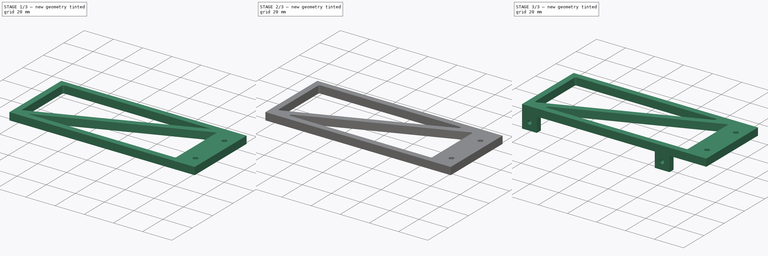
[diagram: build sequence overview — one tinted view per stage of 3, left to right]
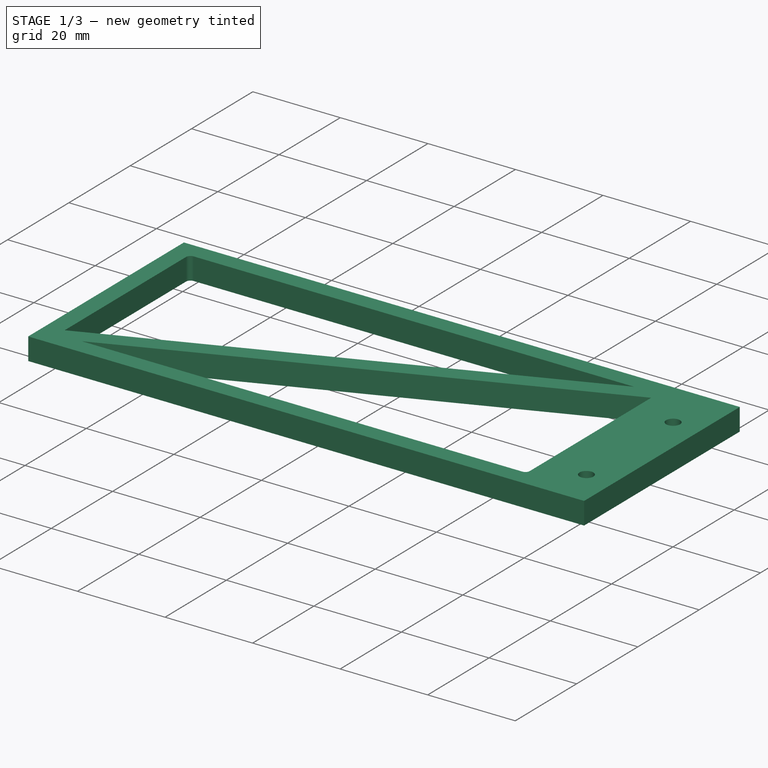
[diagram: stage 1 of 3 — iso view after this stage's code; geometry added in this stage tinted green]
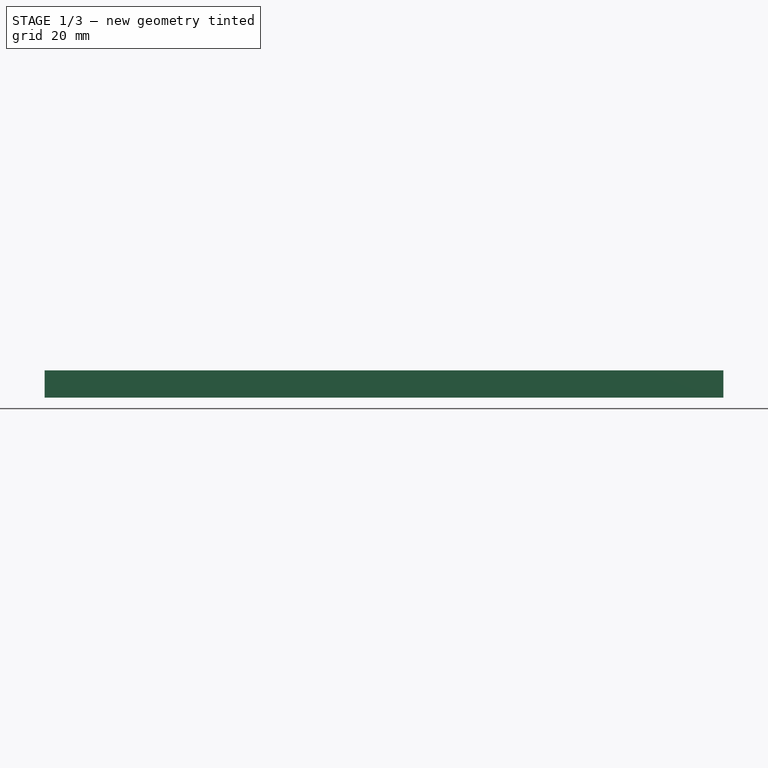
[diagram: stage 1 of 3 — front view after this stage's code; geometry added in this stage tinted green]
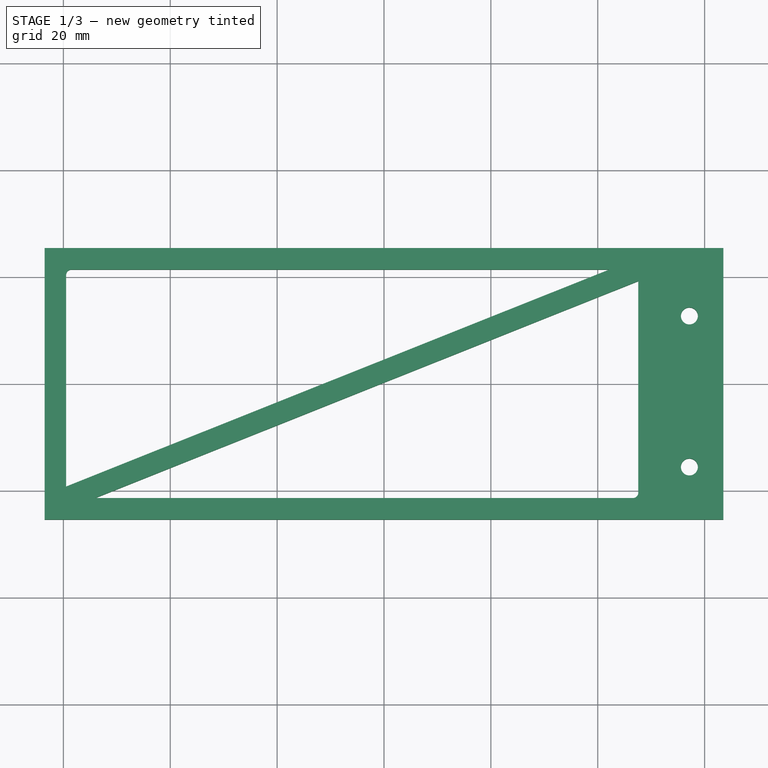
[diagram: stage 1 of 3 — top view after this stage's code; geometry added in this stage tinted green]
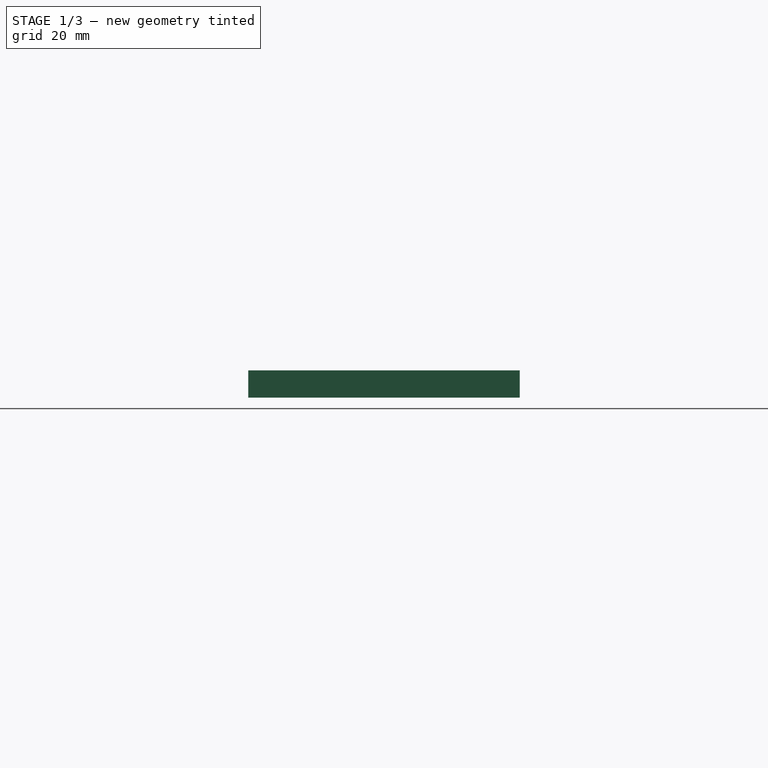
[diagram: stage 1 of 3 — right view after this stage's code; geometry added in this stage tinted green]
FCSTD DOCUMENT  (FreeCAD 1.0R39285 (Git))
Label: side_left
License: All rights reserved
LicenseURL: http://en.wikipedia.org/wiki/All_rights_reserved
objects: Sketcher::SketchObject×4, PartDesign::Fillet×3, PartDesign::Pad×2, PartDesign::Pocket×1, PartDesign::Hole×1, PartDesign::Body×1, Part::FeaturePython×1
note: 31 computed .brp shape members not serialized (recipe doc carries the construction recipe); baked Part::Feature solids carry a one-line shape summary decoded from their .brp

FEATURE [Sketcher::SketchObject] Sketch
  ArcFitTolerance = 1e-06
  AttachmentSupport = -> [XY_Plane]
  FullyConstrained = true
  MakeInternals = false
  MapMode = 5
  sketch-geometry (5):
    g0: LineSegment StartX=-63.5 StartY=-25.4 StartZ=0 EndX=63.5 EndY=-25.4 EndZ=0
    g1: LineSegment StartX=63.5 StartY=-25.4 StartZ=0 EndX=63.5 EndY=25.4 EndZ=0
    g2: LineSegment StartX=63.5 StartY=25.4 StartZ=0 EndX=-63.5 EndY=25.4 EndZ=0
    g3: LineSegment StartX=-63.5 StartY=25.4 StartZ=0 EndX=-63.5 EndY=-25.4 EndZ=0
    g4: GeomPoint [constr] X=0 Y=0 Z=0
  constraints (12):
    c: Coincident(g0,g1)
    c: Coincident(g1,g2)
    c: Coincident(g2,g3)
    c: Coincident(g3,g0)
    c: Horizontal(g0)
    c: Horizontal(g2)
    c: Vertical(g1)
    c: Vertical(g3)
    c: Symmetric(g2,g0,g4)
    c: Distance(g1,g3) = 127
    c: Distance(g0,g2) = 50.8
    c: Coincident(g4,g-1)
FEATURE [PartDesign::Pad] Pad
  Direction = (0,0,1)
  Length = 5.08
  Length2 = 10
  Profile = -> Sketch
  ReferenceAxis = -> Sketch [N_Axis]
  Suppressed = false
  Type = 0
FEATURE [Sketcher::SketchObject] Sketch001
  ArcFitTolerance = 1e-06
  AttachmentSupport = -> [Pad]
  ExternalGeometry = -> [Pad]
  FullyConstrained = false
  MakeInternals = false
  MapMode = 5
  Placement = pos=(0,0,5.08) rot=(0,0,1;0rad)
  sketch-geometry (19):
    g0: LineSegment [constr] StartX=63.5 StartY=-25.4 StartZ=0 EndX=57.15 EndY=-25.4 EndZ=0
    g1: LineSegment [constr] StartX=57.15 StartY=-25.4 StartZ=0 EndX=57.15 EndY=-15.5673 EndZ=0
    g2: LineSegment [constr] StartX=57.15 StartY=-15.5673 StartZ=0 EndX=57.15 EndY=12.7 EndZ=0
    g3: LineSegment [constr] StartX=57.15 StartY=12.7 StartZ=0 EndX=57.15 EndY=25.4 EndZ=0
    g4: Circle CenterX=57.15 CenterY=12.7 CenterZ=0 NormalX=0 NormalY=0 NormalZ=1 AngleXU=0 Radius=1.5875
    g5: Circle CenterX=57.15 CenterY=-15.5673 CenterZ=0 NormalX=0 NormalY=0 NormalZ=1 AngleXU=0 Radius=1.5875
    g6: LineSegment [constr] StartX=57.15 StartY=-25.4 StartZ=0 EndX=51.5983 EndY=-25.4 EndZ=0
    g7: LineSegment [constr] StartX=51.5983 StartY=-25.4 StartZ=0 EndX=47.5851 EndY=-21.1328 EndZ=0
    g8: LineSegment [constr] StartX=-63.5 StartY=-25.4 StartZ=0 EndX=-59.4868 EndY=-21.3868 EndZ=0
    g9: LineSegment [constr] StartX=-63.5 StartY=25.4 StartZ=0 EndX=-59.4868 EndY=21.3868 EndZ=0
    g10: LineSegment [constr] StartX=47.5851 StartY=-21.1328 StartZ=0 EndX=47.5851 EndY=19.226 EndZ=0
    g11: LineSegment [constr] StartX=47.5851 StartY=25.4 StartZ=0 EndX=47.5851 EndY=21.3868 EndZ=0
    g12: LineSegment StartX=-54.0779 StartY=-21.3868 StartZ=0 EndX=47.5851 EndY=-21.3868 EndZ=0
    g13: LineSegment StartX=47.5851 StartY=-21.3868 StartZ=0 EndX=47.5851 EndY=19.226 EndZ=0
    g14: LineSegment StartX=42.1761 StartY=21.3868 StartZ=0 EndX=-59.4868 EndY=21.3868 EndZ=0
    g15: LineSegment StartX=-59.4868 StartY=21.3868 StartZ=0 EndX=-59.4868 EndY=-19.226 EndZ=0
    g16: LineSegment StartX=-59.4868 StartY=-19.226 StartZ=0 EndX=42.1761 EndY=21.3868 EndZ=0
    g17: LineSegment StartX=-54.0779 StartY=-21.3868 StartZ=0 EndX=47.5851 EndY=19.226 EndZ=0
    g18: LineSegment [constr] StartX=47.5851 StartY=21.3868 StartZ=0 EndX=47.5851 EndY=25.4 EndZ=0
  constraints (47):
    c: Distance(g0) = 6.35
    c: Coincident(g0,g-5)
    c: PointOnObject(g0,g-5)
    c: Coincident(g1,g0)
    c: Vertical(g1)
    c: Block(g1)
    c: Coincident(g2,g1)
    c: Vertical(g2)
    c: Coincident(g3,g2)
    c: PointOnObject(g3,g-3)
    c: Vertical(g3)
    c: DistanceY(g3,g3) = 12.7
    c: Diameter(g4) = 3.175
    c: Coincident(g4,g2)
    c: Diameter(g5) = 3.175
    c: Coincident(g5,g1)
    c: Coincident(g6,g0)
    c: Horizontal(g6)
    c: Block(g6)
    c: DistanceX(g7,g7) = 4.0132
    c: DistanceY(g7,g7) = 4.2672
    c: Coincident(g7,g6)
    c: DistanceX(g8,g8) = 4.0132
    c: DistanceY(g8,g8) = 4.0132
    c: Coincident(g8,g-5)
    c: DistanceX(g9,g9) = 4.0132
    c: DistanceY(g9,g9) = 4.0132
    c: Coincident(g9,g-3)
    c: Coincident(g10,g7)
    c: PointOnObject(g18,g-3)
    c: Vertical(g10)
    c: DistanceX(g11,g11) = 0
    c: DistanceY(g11,g11) = 4.0132
    c: Coincident(g11,g18)
    c: Coincident(g12,g13)
    c: Coincident(g14,g15)
    c: Horizontal(g12)
    c: Horizontal(g14)
    c: Vertical(g13)
    c: Vertical(g15)
    c: PointOnObject(g17,g10)
    c: PointOnObject(g13,g17)
    c: Coincident(g12,g17)
    c: Coincident(g15,g16)
    c: Coincident(g14,g16)
    c: PointOnObject(g10,g13)
    c: PointOnObject(g18,g11)
FEATURE [PartDesign::Pocket] Pocket
  BaseFeature = -> Pad
  Direction = (0,0,-1)
  Length = 5
  Length2 = 5
  Profile = -> Sketch001
  ReferenceAxis = -> Sketch001 [N_Axis]
  Suppressed = false
  Type = 1
FEATURE [PartDesign::Fillet] Fillet
  Base = -> Pocket [Edge33,Edge29]
  BaseFeature = -> Pocket
  Radius = 0.999998
  SupportTransform = false
  Suppressed = false
  UseAllEdges = false
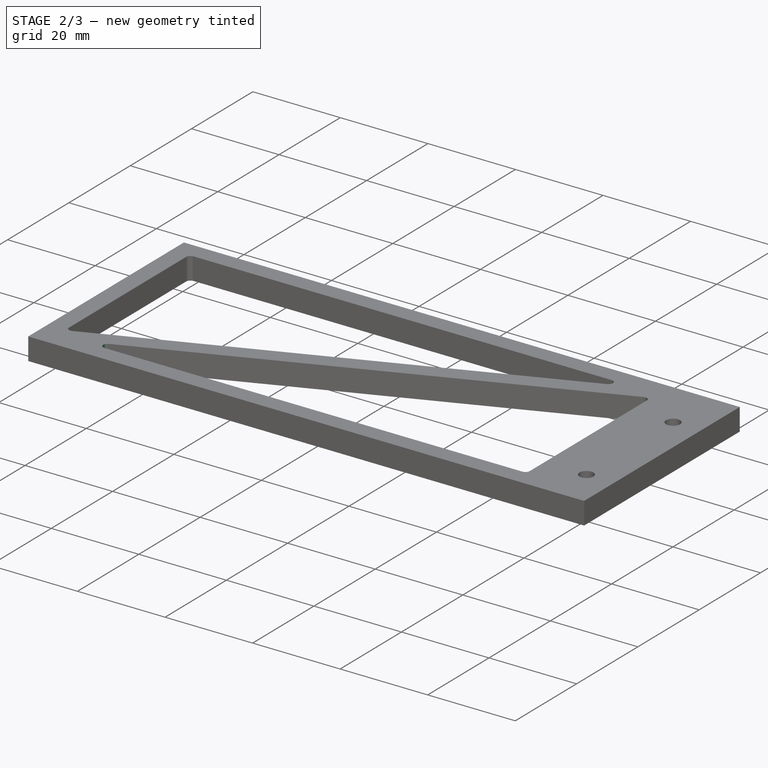
[diagram: stage 2 of 3 — iso view after this stage's code; geometry added in this stage tinted green]
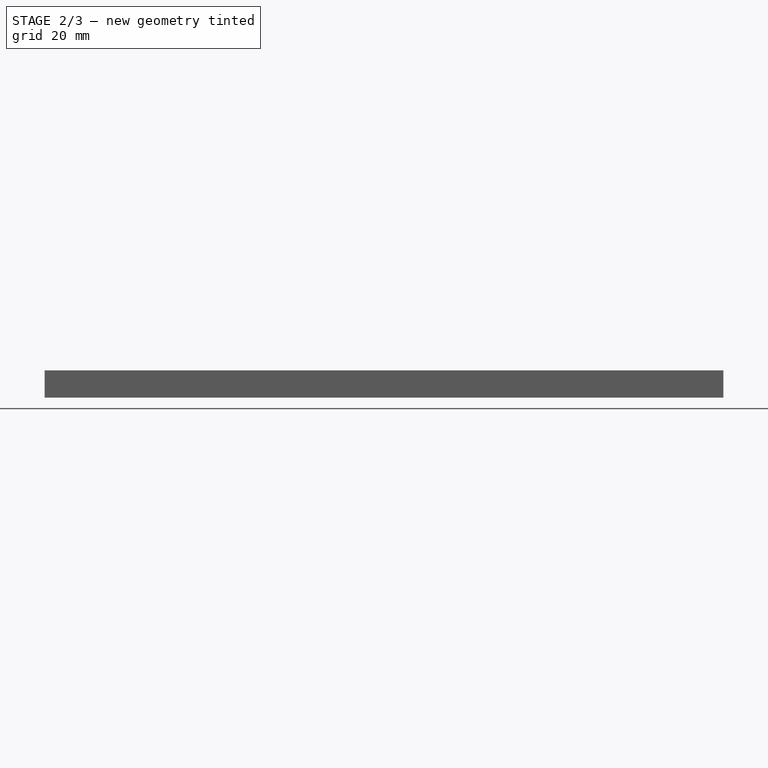
[diagram: stage 2 of 3 — front view after this stage's code; geometry added in this stage tinted green]
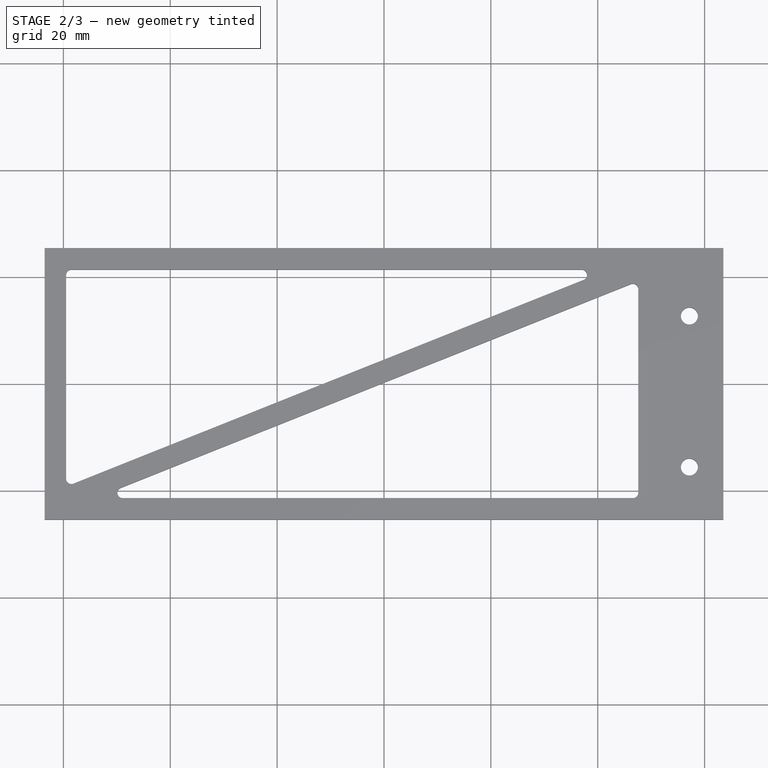
[diagram: stage 2 of 3 — top view after this stage's code; geometry added in this stage tinted green]
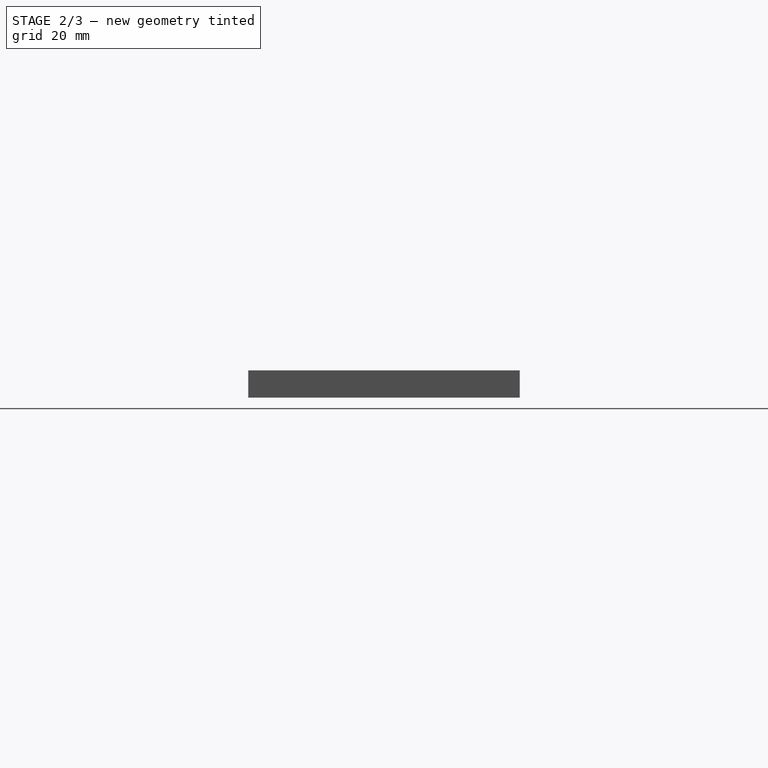
[diagram: stage 2 of 3 — right view after this stage's code; geometry added in this stage tinted green]
FEATURE [PartDesign::Fillet] Fillet001
  Base = -> Fillet [Edge17,Edge37]
  BaseFeature = -> Fillet
  Radius = 0.999998
  SupportTransform = false
  Suppressed = false
  UseAllEdges = false
FEATURE [PartDesign::Fillet] Fillet002
  Base = -> Fillet001 [Edge25,Edge47]
  BaseFeature = -> Fillet001
  Radius = 0.999998
  SupportTransform = false
  Suppressed = false
  UseAllEdges = false
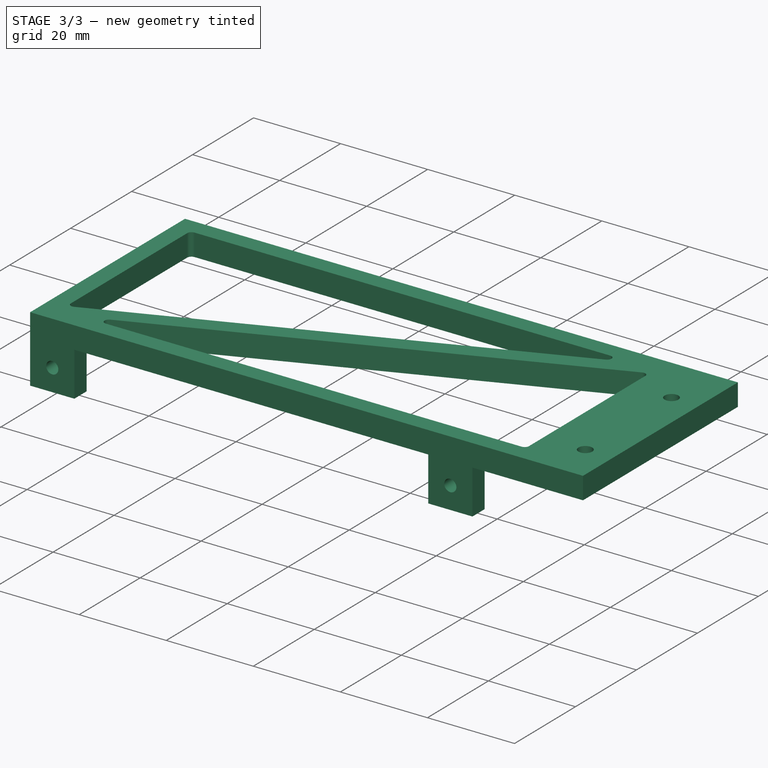
[diagram: stage 3 of 3 — iso view after this stage's code; geometry added in this stage tinted green]
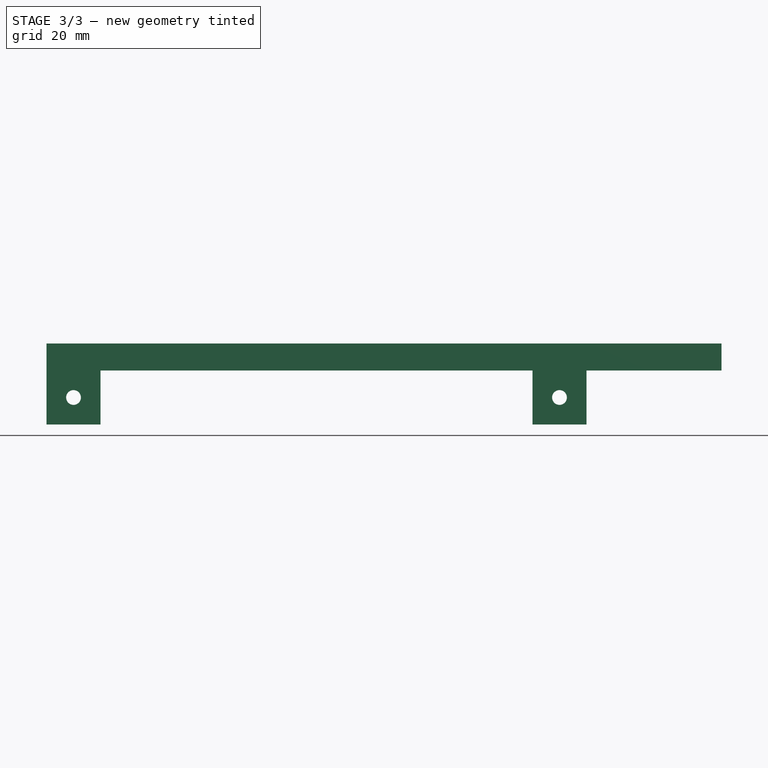
[diagram: stage 3 of 3 — front view after this stage's code; geometry added in this stage tinted green]
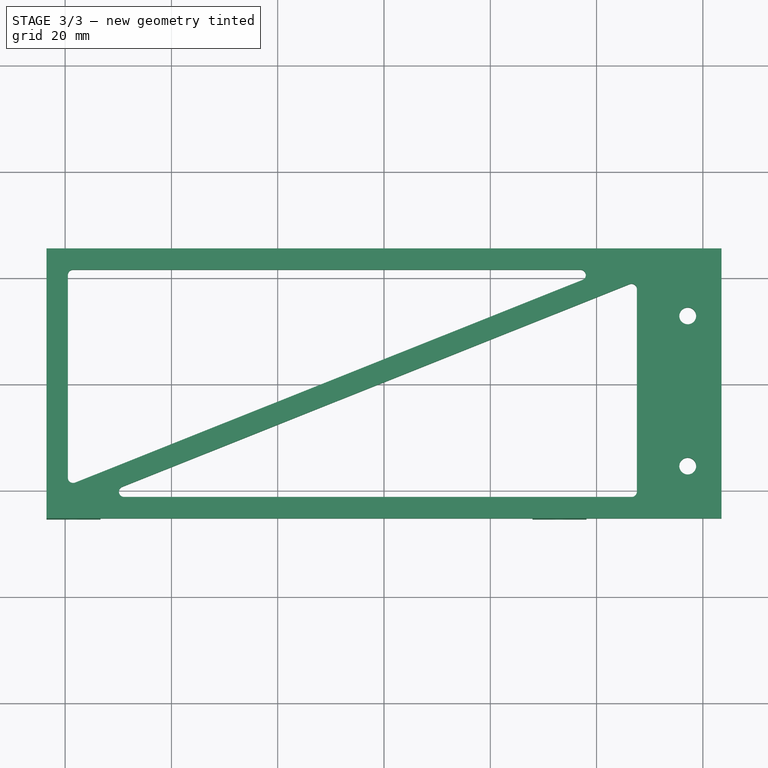
[diagram: stage 3 of 3 — top view after this stage's code; geometry added in this stage tinted green]
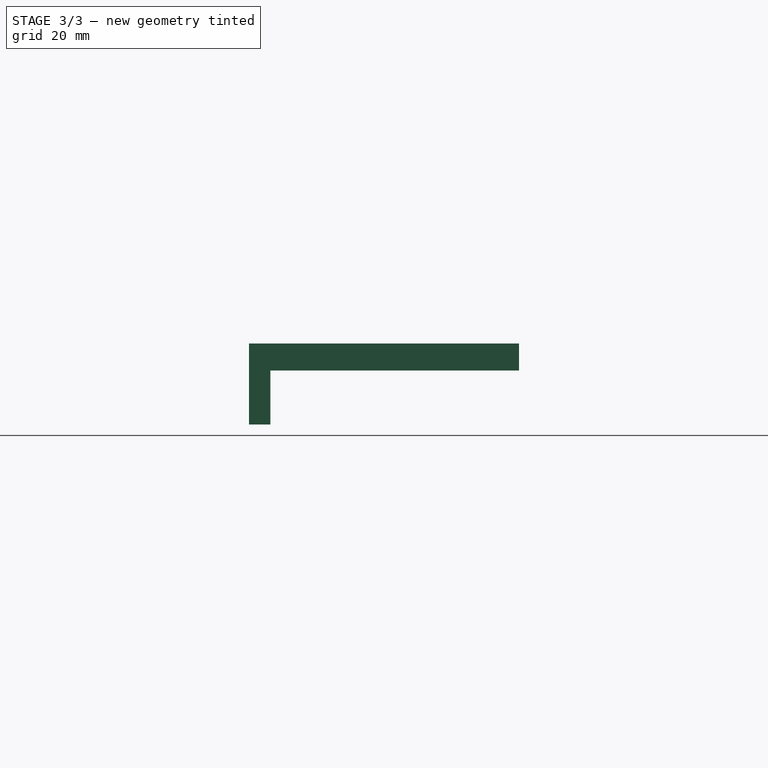
[diagram: stage 3 of 3 — right view after this stage's code; geometry added in this stage tinted green]
FEATURE [Sketcher::SketchObject] Sketch002
  ArcFitTolerance = 1e-06
  AttachmentSupport = -> [Fillet002]
  ExternalGeometry = -> [Fillet002]
  FullyConstrained = true
  MakeInternals = false
  MapMode = 5
  Placement = pos=(0,0,5.08) rot=(0,0,1;0rad)
  sketch-geometry (9):
    g0: LineSegment StartX=-63.5 StartY=-25.4 StartZ=0 EndX=-53.34 EndY=-25.4 EndZ=0
    g1: LineSegment StartX=-53.34 StartY=-25.4 StartZ=0 EndX=-53.34 EndY=-21.3868 EndZ=0
    g2: LineSegment StartX=-53.34 StartY=-21.3868 StartZ=0 EndX=-63.5 EndY=-21.3868 EndZ=0
    g3: LineSegment StartX=-63.5 StartY=-21.3868 StartZ=0 EndX=-63.5 EndY=-25.4 EndZ=0
    g4: LineSegment [constr] StartX=-63.5 StartY=-25.4 StartZ=0 EndX=38.1 EndY=-25.4 EndZ=0
    g5: LineSegment StartX=38.1 StartY=-25.4 StartZ=0 EndX=38.1 EndY=-21.3868 EndZ=0
    g6: LineSegment StartX=38.1 StartY=-21.3868 StartZ=0 EndX=27.94 EndY=-21.3868 EndZ=0
    g7: LineSegment StartX=27.94 StartY=-21.3868 StartZ=0 EndX=27.94 EndY=-25.4 EndZ=0
    g8: LineSegment StartX=27.94 StartY=-25.4 StartZ=0 EndX=38.1 EndY=-25.4 EndZ=0
  constraints (25):
    c: Coincident(g0,g1)
    c: Coincident(g1,g2)
    c: Coincident(g2,g3)
    c: Coincident(g3,g0)
    c: Horizontal(g0)
    c: Horizontal(g2)
    c: Vertical(g1)
    c: Vertical(g3)
    c: Distance(g1,g3) = 10.16
    c: Distance(g0,g2) = 4.0132
    c: Coincident(g0,g-4)
    c: Distance(g4) = 101.6
    c: Coincident(g4,g0)
    c: PointOnObject(g4,g-4)
    c: Coincident(g5,g6)
    c: Coincident(g6,g7)
    c: Coincident(g7,g8)
    c: Coincident(g8,g5)
    c: Vertical(g5)
    c: Vertical(g7)
    c: Horizontal(g6)
    c: Horizontal(g8)
    c: Distance(g5,g7) = 10.16
    c: Distance(g6,g8) = 4.0132
    c: Coincident(g5,g4)
FEATURE [PartDesign::Pad] Pad001
  BaseFeature = -> Fillet002
  Direction = (0,0,1)
  Length = 10.16
  Length2 = 10
  Profile = -> Sketch002
  ReferenceAxis = -> Sketch002 [N_Axis]
  Suppressed = false
  Type = 0
FEATURE [Sketcher::SketchObject] Sketch003
  ArcFitTolerance = 1e-06
  AttachmentSupport = -> [Pad001]
  ExternalGeometry = -> [Pad001]
  FullyConstrained = true
  MakeInternals = false
  MapMode = 5
  Placement = pos=(0,-25.4,0) rot=(1,0,0;1.5708rad)
  sketch-geometry (10):
    g0: LineSegment [constr] StartX=27.94 StartY=15.24 StartZ=0 EndX=27.94 EndY=10.16 EndZ=0
    g1: LineSegment [constr] StartX=27.94 StartY=10.16 StartZ=0 EndX=27.94 EndY=5.08 EndZ=0
    g2: LineSegment [constr] StartX=27.94 StartY=10.16 StartZ=0 EndX=33.02 EndY=10.16 EndZ=0
    g3: LineSegment [constr] StartX=33.02 StartY=10.16 StartZ=0 EndX=38.1 EndY=10.16 EndZ=0
    g4: LineSegment [constr] StartX=-63.5 StartY=5.08 StartZ=0 EndX=-63.5 EndY=10.16 EndZ=0
    g5: LineSegment [constr] StartX=-63.5 StartY=10.16 StartZ=0 EndX=-63.5 EndY=15.24 EndZ=0
    g6: LineSegment [constr] StartX=-63.5 StartY=10.16 StartZ=0 EndX=-58.42 EndY=10.16 EndZ=0
    g7: LineSegment [constr] StartX=-58.42 StartY=10.16 StartZ=0 EndX=-53.34 EndY=10.16 EndZ=0
    g8: Circle CenterX=-58.42 CenterY=10.16 CenterZ=0 NormalX=0 NormalY=0 NormalZ=1 AngleXU=0 Radius=1.143
    g9: Circle CenterX=33.02 CenterY=10.16 CenterZ=0 NormalX=0 NormalY=0 NormalZ=1 AngleXU=0 Radius=1.143
  constraints (24):
    c: Coincident(g0,g-8)
    c: Symmetric(g-7,g-7,g0)
    c: Coincident(g1,g0)
    c: Coincident(g1,g-10)
    c: Coincident(g2,g0)
    c: Horizontal(g2)
    c: Coincident(g3,g2)
    c: Symmetric(g-9,g-9,g3)
    c: Coincident(g4,g-5)
    c: PointOnObject(g4,g-4)
    c: Coincident(g5,g4)
    c: Coincident(g5,g-4)
    c: Coincident(g6,g4)
    c: Horizontal(g6)
    c: Coincident(g7,g6)
    c: PointOnObject(g7,g-6)
    c: Horizontal(g7)
    c: Equal(g4,g5)
    c: Equal(g6,g7)
    c: Equal(g2,g3)
    c: Diameter(g8) = 2.286
    c: Coincident(g8,g6)
    c: Diameter(g9) = 2.286
    c: Coincident(g9,g2)
FEATURE [PartDesign::Hole] Hole
  BaseFeature = -> Pad001
  CustomThreadClearance = 0
  Depth = 278.012
  DepthType = 1
  Diameter = 2.77813
  DrillForDepth = false
  DrillPoint = 1
  DrillPointAngle = 118
  HoleCutCountersinkAngle = 90
  HoleCutCustomValues = false
  HoleCutDepth = 0
  HoleCutDiameter = 0
  HoleCutType = 0
  ModelThread = false
  Profile = -> Sketch003
  Suppressed = false
  Tapered = false
  TaperedAngle = 90
  ThreadClass = 0
  ThreadDepth = 278.012
  ThreadDepthType = 0
  ThreadDirection = 0
  ThreadFit = 0
  ThreadSize = 0
  ThreadType = 0
  Threaded = false
  UseCustomThreadClearance = false
FEATURE [PartDesign::Body] Body
  AllowCompound = false
  Group = -> [Sketch,Pad,Sketch001,Pocket,Fillet,Fillet001,Fillet002,Sketch002,Pad001,Sketch003,Hole]
  Origin = -> Origin
  Tip = -> Hole
FEATURE [Part::FeaturePython] Clone  label="Hole001"  # Draft clone (typed FeaturePython)
  AttacherType = Attacher::AttachEngine3D
  Fuse = false
  Objects = -> [Hole]
  Placement = pos=(0,0,-41.9999) rot=(0,0,1;0rad)
  Scale = (1,1,-1)
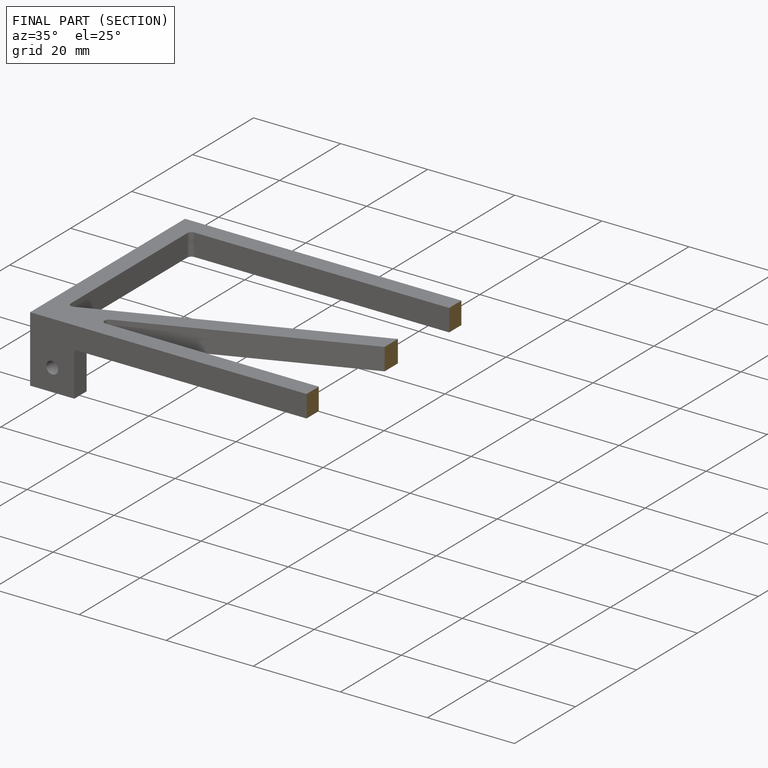
[diagram: finished part — half-section view (interior)]
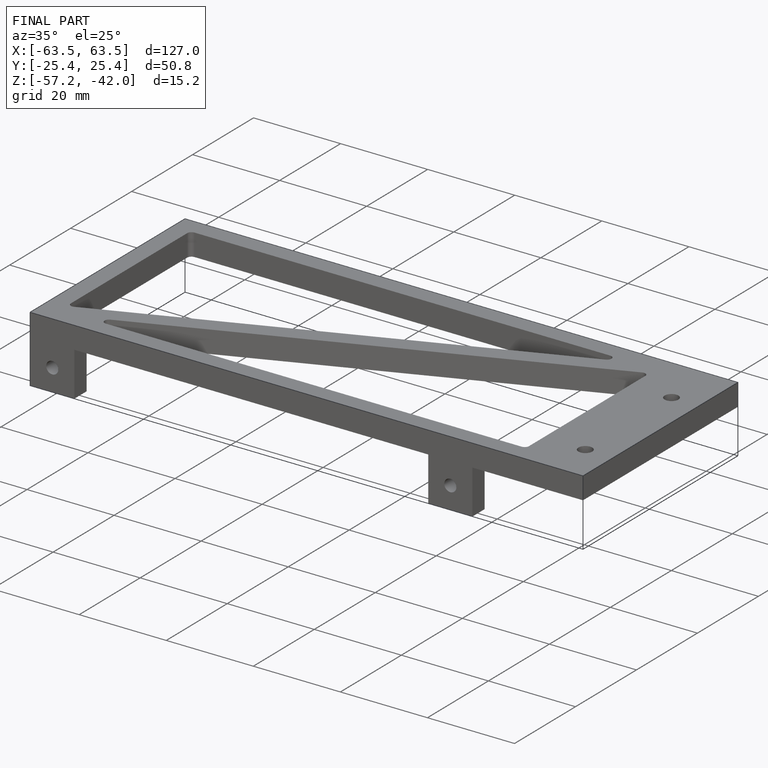
[diagram: finished part — iso view with bounding-box wireframe]
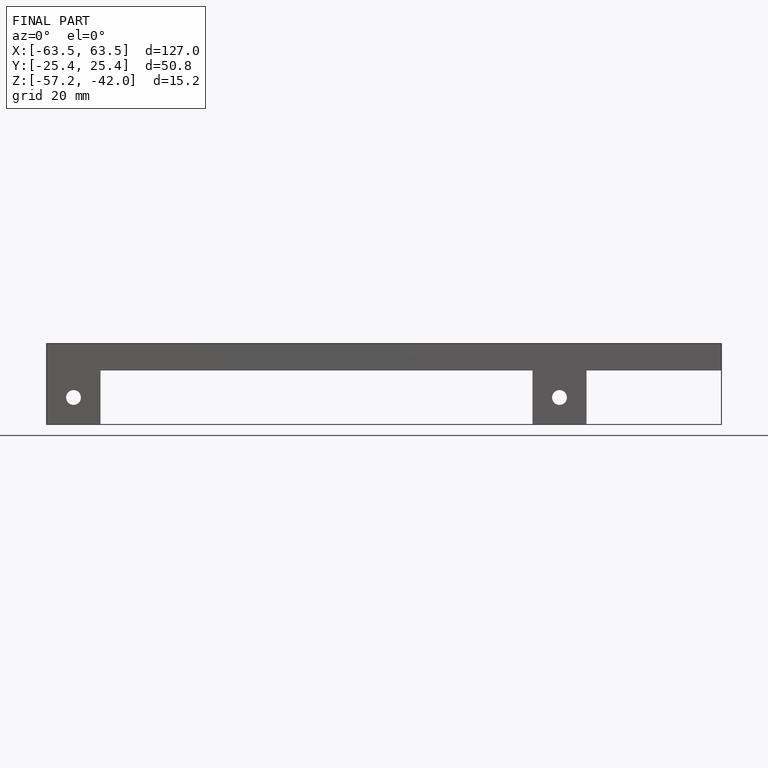
[diagram: finished part — front view with bounding-box wireframe]
